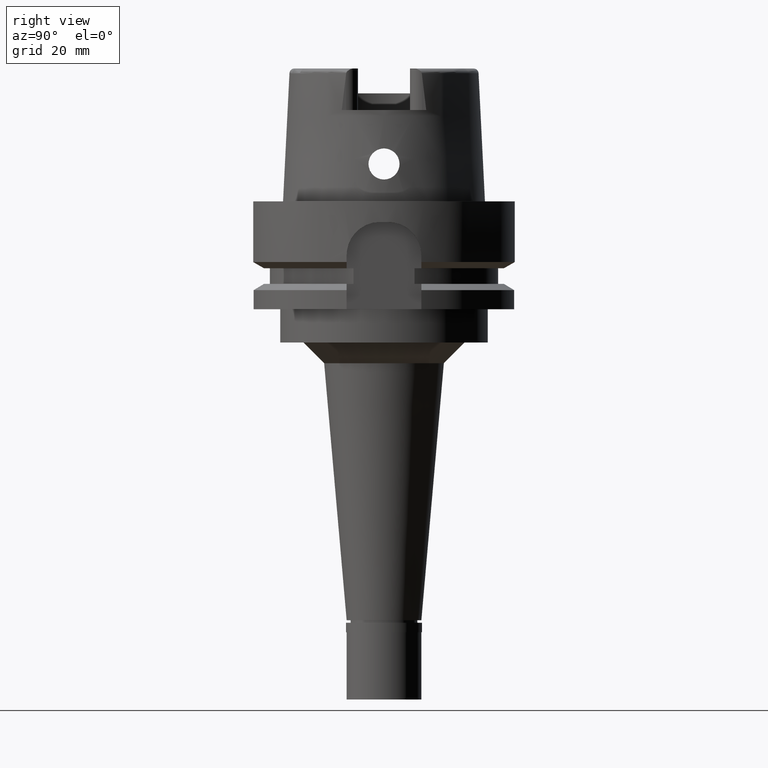
[diagram: clean part render]
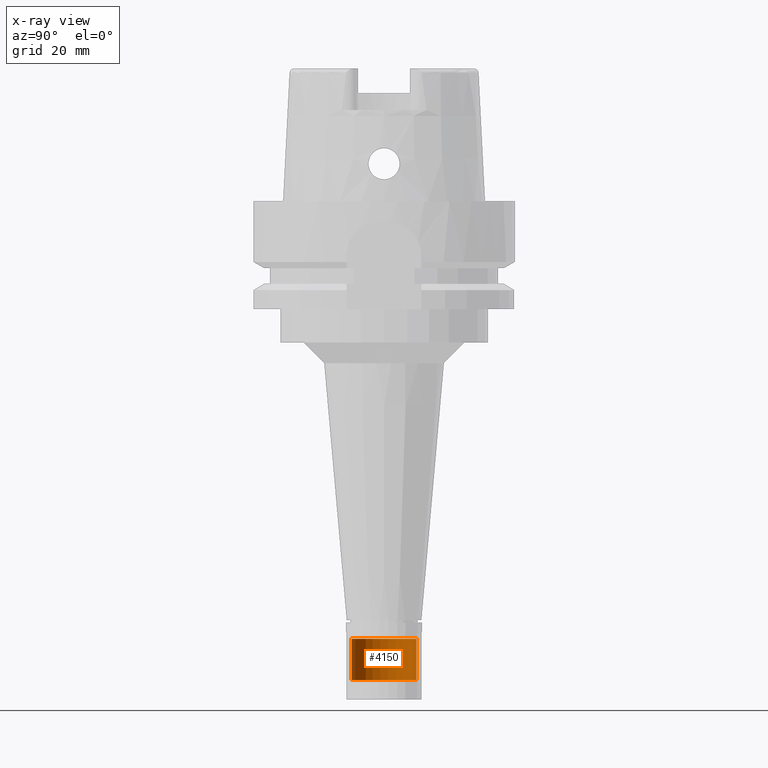
[diagram: x-ray — body ghosted, one internal face saturated and labeled with its STEP entity id]
A machine part, right view, then the same camera in x-ray: the body is ghosted and one INTERNAL B-rep face — a face not visible from any outside direction — is saturated and labeled: STEP entity #4150.
In plain terms, the highlighted cylindrical surface (edge-blend (fillet) strip) has radius 7.8 mm, axis along (0, 0, -1).
Its self-contained STEP definition (entity closure, byte-faithful):
#39 = VERTEX_POINT ( 'NONE', #4856 ) ;
#78 = ORIENTED_EDGE ( 'NONE', *, *, #3568, .T. ) ;
#404 = EDGE_CURVE ( 'NONE', #39, #4155, #4308, .T. ) ;
#746 = CARTESIAN_POINT ( 'NONE',  ( 0.0000000000000000000, -7.799999999999999822, -105.3999999999999915 ) ) ;
#1005 = CARTESIAN_POINT ( 'NONE',  ( 0.0000000000000000000, -7.799999999999999822, -115.4000000000000057 ) ) ;
#1010 = CARTESIAN_POINT ( 'NONE',  ( 0.0000000000000000000, 7.799999999999999822, -105.3999999999999915 ) ) ;
#1035 = DIRECTION ( 'NONE',  ( 0.0000000000000000000, 0.0000000000000000000, -1.000000000000000000 ) ) ;
#1433 = AXIS2_PLACEMENT_3D ( 'NONE', #3835, #4268, #3422 ) ;
#1489 = CARTESIAN_POINT ( 'NONE',  ( 0.0000000000000000000, -7.799999999999999822, -105.3999999999999915 ) ) ;
#1624 = VECTOR ( 'NONE', #3150, 1000.000000000000000 ) ;
#1643 = EDGE_CURVE ( 'NONE', #4545, #4155, #3594, .T. ) ;
#2292 = AXIS2_PLACEMENT_3D ( 'NONE', #4693, #3949, #3020 ) ;
#2767 = EDGE_LOOP ( 'NONE', ( #3834, #5186, #4346, #78 ) ) ;
#2899 = AXIS2_PLACEMENT_3D ( 'NONE', #5213, #1035, #3076 ) ;
#3020 = DIRECTION ( 'NONE',  ( 0.0000000000000000000, -1.000000000000000000, 0.0000000000000000000 ) ) ;
#3052 = FACE_OUTER_BOUND ( 'NONE', #2767, .T. ) ;
#3076 = DIRECTION ( 'NONE',  ( 0.0000000000000000000, -1.000000000000000000, 0.0000000000000000000 ) ) ;
#3150 = DIRECTION ( 'NONE',  ( 0.0000000000000000000, 0.0000000000000000000, -1.000000000000000000 ) ) ;
#3153 = DIRECTION ( 'NONE',  ( 0.0000000000000000000, 0.0000000000000000000, -1.000000000000000000 ) ) ;
#3422 = DIRECTION ( 'NONE',  ( 0.0000000000000000000, 1.000000000000000000, 0.0000000000000000000 ) ) ;
#3568 = EDGE_CURVE ( 'NONE', #5349, #39, #3930, .T. ) ;
#3594 = LINE ( 'NONE', #1489, #1624 ) ;
#3834 = ORIENTED_EDGE ( 'NONE', *, *, #404, .T. ) ;
#3835 = CARTESIAN_POINT ( 'NONE',  ( 0.0000000000000000000, 0.0000000000000000000, -115.4000000000000057 ) ) ;
#3870 = CYLINDRICAL_SURFACE ( 'NONE', #2899, 7.799999999999999822 ) ;
#3930 = LINE ( 'NONE', #1010, #4140 ) ;
#3949 = DIRECTION ( 'NONE',  ( 0.0000000000000000000, 0.0000000000000000000, -1.000000000000000000 ) ) ;
#4002 = EDGE_CURVE ( 'NONE', #4545, #5349, #4827, .T. ) ;
#4140 = VECTOR ( 'NONE', #3153, 1000.000000000000000 ) ;
#4150 = ADVANCED_FACE ( 'NONE', ( #3052 ), #3870, .T. ) ;
#4155 = VERTEX_POINT ( 'NONE', #1005 ) ;
#4268 = DIRECTION ( 'NONE',  ( 0.0000000000000000000, 0.0000000000000000000, 1.000000000000000000 ) ) ;
#4308 = CIRCLE ( 'NONE', #1433, 7.799999999999999822 ) ;
#4346 = ORIENTED_EDGE ( 'NONE', *, *, #4002, .T. ) ;
#4545 = VERTEX_POINT ( 'NONE', #746 ) ;
#4602 = CARTESIAN_POINT ( 'NONE',  ( 0.0000000000000000000, 7.799999999999999822, -105.3999999999999915 ) ) ;
#4693 = CARTESIAN_POINT ( 'NONE',  ( 0.0000000000000000000, 0.0000000000000000000, -105.3999999999999915 ) ) ;
#4827 = CIRCLE ( 'NONE', #2292, 7.799999999999999822 ) ;
#4856 = CARTESIAN_POINT ( 'NONE',  ( 0.0000000000000000000, 7.799999999999999822, -115.4000000000000057 ) ) ;
#5186 = ORIENTED_EDGE ( 'NONE', *, *, #1643, .F. ) ;
#5213 = CARTESIAN_POINT ( 'NONE',  ( 0.0000000000000000000, 0.0000000000000000000, 39.37000000000000455 ) ) ;
#5349 = VERTEX_POINT ( 'NONE', #4602 ) ;